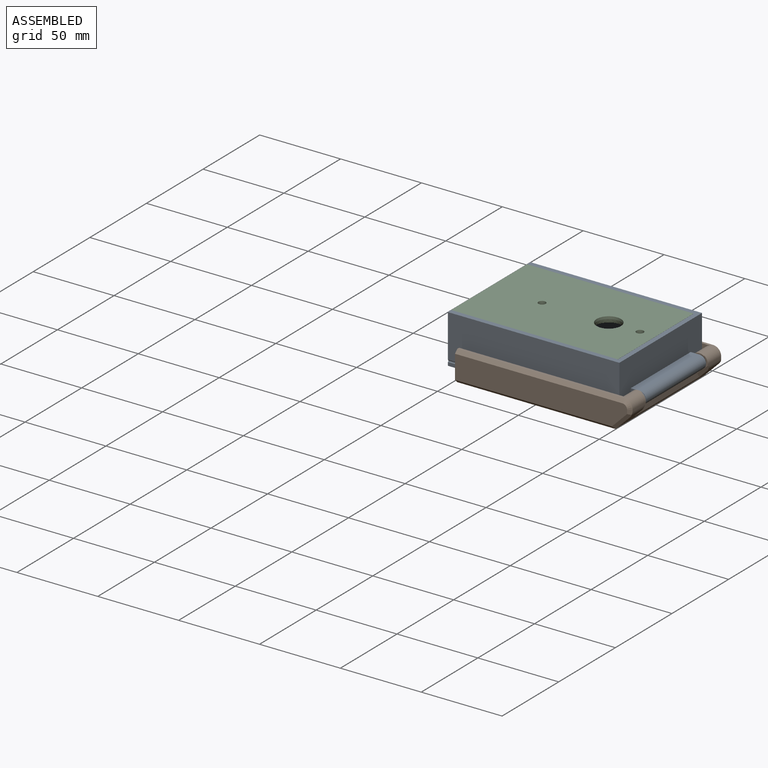
[diagram: assembled view]
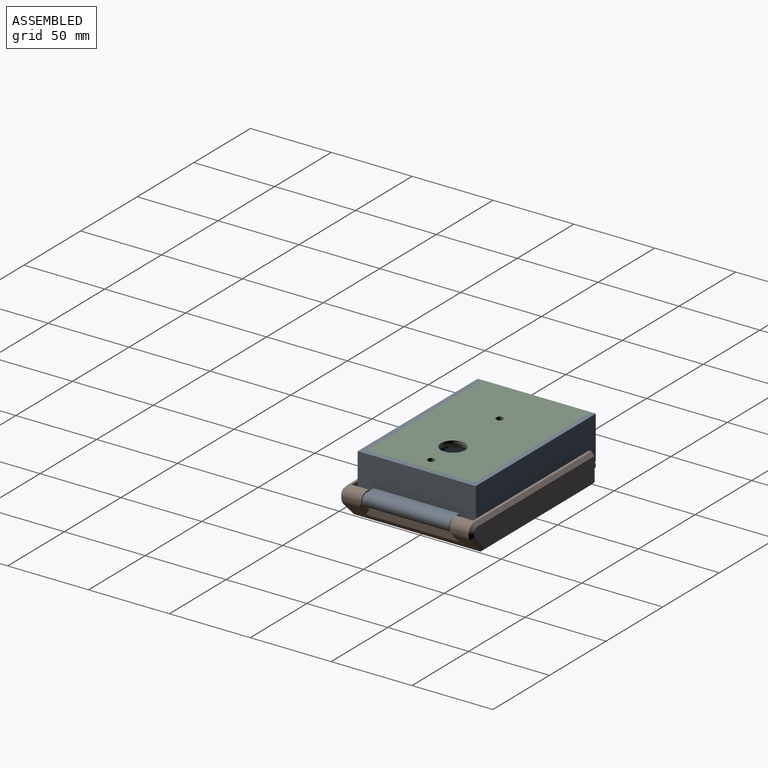
[diagram: assembled view, second angle]
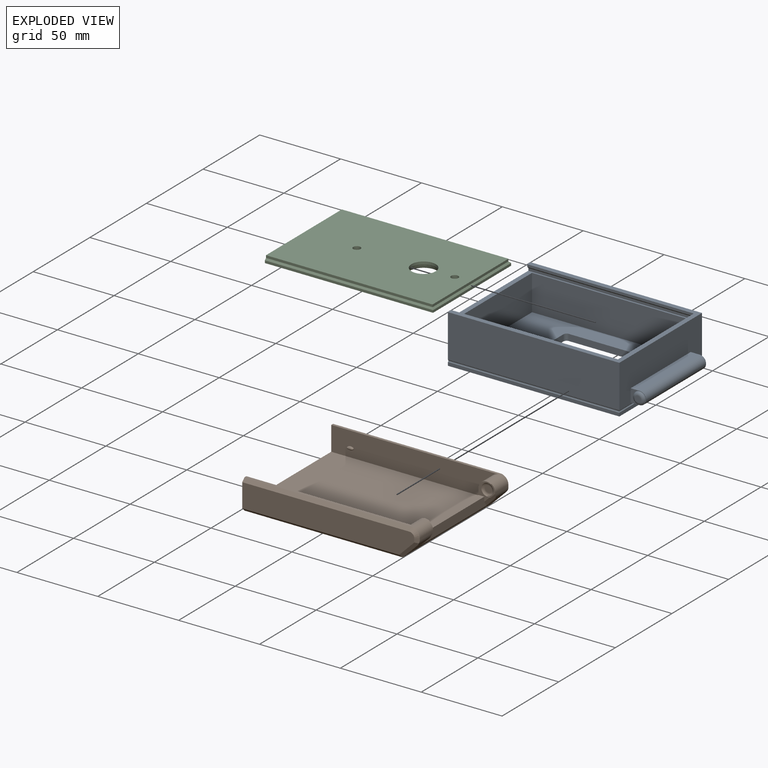
[diagram: exploded view]
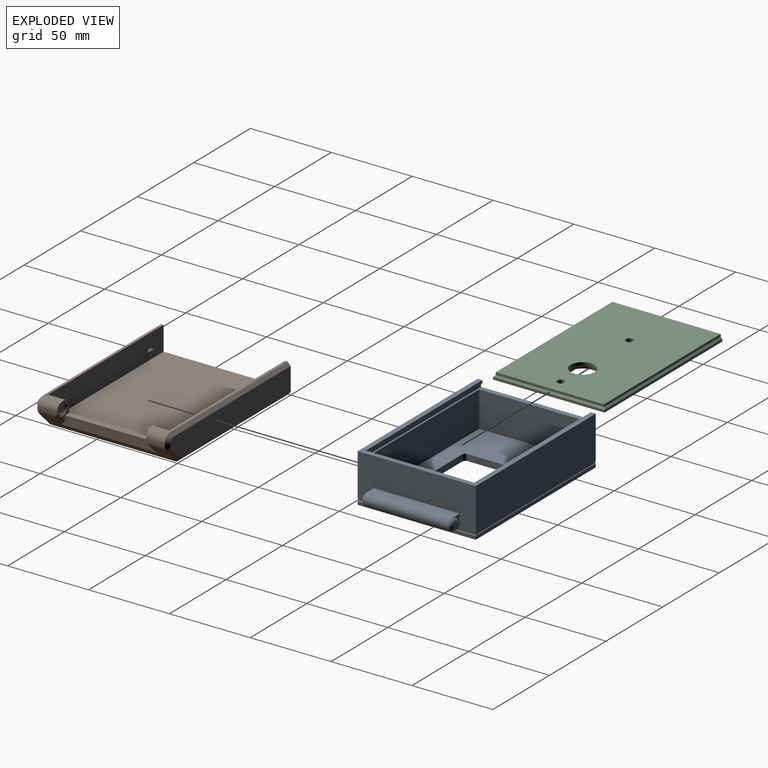
[diagram: exploded view, second angle]
ASSEMBLY  parts=3 mates=2
PART A: 50 faces, bbox 115.5x73x30 mm
  f0: plane 106x26.6mm, normal (0,1,0), area 2819.6mm2, adj f2,f8,f28,f46
  f1: plane 72.2x0.5mm, normal (1,0,0), area 36.1mm2, adj f4,f43,f45,f49
  f2: plane 73x26.6mm, normal (1,0,0), area 1517.8mm2, adj f0,f5,f7,f8,f9,f10,f38,f45
  f3: plane 106x2.1mm, normal (0,1,0), area 222.6mm2, adj f6,f11,f28,f47
  f4: plane 105.6x0.5mm, normal (0,-1,0), area 52.8mm2, adj f1,f28,f44,f48
  f5: plane 106x26.6mm, normal (0,-1,0), area 2819.6mm2, adj f2,f8,f28,f44
  f6: plane 73x2.1mm, normal (1,0,0), area 153.3mm2, adj f3,f11,f29,f49
  f7: plane 53x5.5mm, normal (0,0,1), area 291.5mm2, adj f2,f9,f10,f39
  f8: plane 106x73mm, normal (0,0,1), area 837mm2, adj f0,f2,f5,f25,f26,f27,f28
  f9: plane 9.5x8mm, normal (0,-1,0), area 25mm2, adj f2,f7,f35,f38,f39
  f10: plane 9.5x8mm, normal (0,1,0), area 25mm2, adj f2,f7,f37,f38,f39
  f11: plane 106x73mm, normal (0,0,-1), area 5140mm2, adj f3,f6,f16,f17,f18,f19,f20,f21
  f12: plane 100x22mm, normal (0,-1,0), area 2200mm2, adj f13,f15,f24,f30
  f13: plane 67x22mm, normal (1,0,0), area 1474mm2, adj f12,f14,f24,f30
  f14: plane 100x22mm, normal (0,1,0), area 2200mm2, adj f13,f15,f24,f30
  f15: plane 67x22mm, normal (-1,0,0), area 1474mm2, adj f12,f14,f24,f30
  f16: cylinder r=2mm len=4mm, axis (0,0,-1), area 12.6mm2, adj f11,f17,f23,f24
  f17: plane 52.8x4mm, normal (0,-1,0), area 211.2mm2, adj f11,f16,f18,f24
  f18: cylinder r=2mm len=4mm, axis (0,0,-1), area 12.6mm2, adj f11,f17,f19,f24
  f19: plane 41.8x4mm, normal (-1,0,0), area 167.2mm2, adj f11,f18,f20,f24
  f20: cylinder r=2mm len=4mm, axis (0,0,-1), area 12.6mm2, adj f11,f19,f21,f24
  f21: plane 52.8x4mm, normal (0,1,0), area 211.2mm2, adj f11,f20,f22,f24
  f22: cylinder r=2mm len=4mm, axis (0,0,-1), area 12.6mm2, adj f11,f21,f23,f24
  f23: plane 41.8x4mm, normal (1,0,0), area 167.2mm2, adj f11,f16,f22,f24
  f24: plane 100x67mm, normal (0,0,1), area 4102mm2, adj f12,f13,f14,f15,f16,f17,f18,f19
  f25: plane 103x1.5mm, normal (0,-1,0), area 154.5mm2, adj f8,f27,f28,f40
  f26: plane 103x1.5mm, normal (0,1,0), area 154.5mm2, adj f8,f27,f28,f41
  f27: plane 67x1.5mm, normal (-1,0,0), area 100.5mm2, adj f8,f25,f26,f42
  f28: plane 73x30mm, normal (-1,0,0), area 1917.3mm2, adj f0,f3,f4,f5,f8,f11,f25,f26
  f29: plane 106x2.1mm, normal (0,-1,0), area 222.6mm2, adj f6,f11,f28,f48
  f30: plane 104x69mm, normal (0,0,1), area 476mm2, adj f12,f13,f14,f15,f28,f31,f32,f33
  f31: plane 104x1.5mm, normal (0,-1,0), area 156mm2, adj f28,f30,f33,f40
  f32: plane 104x1.5mm, normal (0,1,0), area 156mm2, adj f28,f30,f33,f41
  f33: plane 69x1.5mm, normal (-1,0,0), area 103.5mm2, adj f30,f31,f32,f42
  f34: plane 3.63x3.63mm, normal (0,-1,0), area 10.3mm2, adj f35
  f35: torus R=1.81mm, axis (0,1,0), area 48.9mm2, adj f9,f34
  f36: plane 3.63x3.63mm, normal (0,1,0), area 10.3mm2, adj f37
  f37: torus R=1.81mm, axis (0,-1,0), area 48.9mm2, adj f10,f36
  f38: plane 53x5.5mm, normal (0,0,-1), area 291.5mm2, adj f2,f9,f10,f39
  f39: cylinder r=4mm len=53mm, axis (0,-1,0), area 666mm2, adj f7,f9,f10,f38
  f40: plane 104x1mm, normal (0,-0.71,-0.71), area 146.4mm2, adj f25,f28,f31,f42
  f41: plane 104x1mm, normal (0,0.71,-0.71), area 146.4mm2, adj f26,f28,f32,f42
  f42: plane 69x1mm, normal (-0.71,0,-0.71), area 96.2mm2, adj f27,f33,f40,f41
  f43: plane 105.6x0.5mm, normal (0,1,0), area 52.8mm2, adj f1,f28,f46,f47
  f44: plane 106x0.4mm, normal (0,-0.71,-0.71), area 59.8mm2, adj f4,f5,f28,f45
  f45: plane 73x0.4mm, normal (0.71,0,-0.71), area 41.1mm2, adj f1,f2,f44,f46
  f46: plane 106x0.4mm, normal (0,0.71,-0.71), area 59.8mm2, adj f0,f28,f43,f45
  f47: plane 106x0.4mm, normal (0,0.71,0.71), area 59.8mm2, adj f3,f28,f43,f49
  f48: plane 106x0.4mm, normal (0,-0.71,0.71), area 59.8mm2, adj f4,f28,f29,f49
  f49: plane 73x0.4mm, normal (0.71,0,0.71), area 41.1mm2, adj f1,f6,f47,f48
PART B: 57 faces, bbox 109.1x82.9x19.3 mm
  f0: plane 11.67x7.63mm, normal (0,-1,0), area 26.7mm2, adj f2,f8,f16,f17,f25,f27,f49,f51
  f1: plane 103.4x1.6mm, normal (0,0,1), area 165.4mm2, adj f6,f9,f26,f45
  f2: torus R=2.02mm, axis (0,1,0), area 33.4mm2, adj f0,f12,f13,f14,f15
  f3: plane 11.7x1.03mm, normal (1,0,0), area 12mm2, adj f20,f26,f48,f52,f56
  f4: plane 11.67x7.63mm, normal (0,1,0), area 26.7mm2, adj f8,f18,f23,f24,f25,f26,f49,f52
  f5: plane 11.7x1.03mm, normal (1,0,0), area 12mm2, adj f13,f27,f44,f51,f55
  f6: plane 82.2x18.6mm, normal (-1,0,0), area 395.9mm2, adj f1,f7,f9,f10,f11,f38,f39,f40
  f7: plane 103.4x15mm, normal (0,-1,0), area 1475.1mm2, adj f6,f8,f10,f11,f27,f28
  f8: plane 75x10mm, normal (-1,0,0), area 544.8mm2, adj f0,f4,f7,f9,f11,f25,f26,f27
  f9: plane 103.4x15mm, normal (0,1,0), area 1475.1mm2, adj f1,f6,f8,f11,f26,f33
  f10: plane 103.4x1.6mm, normal (0,0,1), area 165.4mm2, adj f6,f7,f27,f41
  f11: plane 98.4x75mm, normal (0,0,1), area 7380mm2, adj f6,f7,f8,f9
  f12: plane 4.04x4.04mm, normal (0,-1,0), area 12.8mm2, adj f2
  f13: plane 7.5x4.5mm, normal (0,-1,0), area 9.2mm2, adj f2,f5,f14,f15,f16,f17,f27,f51
  f14: plane 0.4x0.3mm, normal (1,0,0), area 0.1mm2, adj f2,f13,f16
  f15: plane 0.4x0.3mm, normal (1,0,0), area 0.1mm2, adj f2,f13,f17
  f16: plane 2.09x0.4mm, normal (0,0,1), area 0.7mm2, adj f0,f13,f14,f51
  f17: plane 2.13x0.4mm, normal (0,0,-1), area 0.9mm2, adj f0,f13,f15,f27
  f18: torus R=2.02mm, axis (0,-1,0), area 33.4mm2, adj f4,f19,f20,f21,f22
  f19: plane 4.04x4.04mm, normal (0,1,0), area 12.8mm2, adj f18
  f20: plane 7.5x4.5mm, normal (0,1,0), area 9.2mm2, adj f3,f18,f21,f22,f23,f24,f26,f52
  f21: plane 0.4x0.3mm, normal (1,0,0), area 0.1mm2, adj f18,f20,f23
  f22: plane 0.4x0.3mm, normal (1,0,0), area 0.1mm2, adj f18,f20,f24
  f23: plane 2.09x0.4mm, normal (0,0,1), area 0.7mm2, adj f4,f20,f21,f52
  f24: plane 2.13x0.4mm, normal (0,0,-1), area 0.9mm2, adj f4,f20,f22,f26
  f25: plane 54x3.6mm, normal (0,0,1), area 194.4mm2, adj f0,f4,f8,f49
  f26: cylinder r=5mm len=12.1mm, axis (0,-1,0), area 175.5mm2, adj f1,f3,f4,f8,f9,f20,f24,f46
  f27: cylinder r=5mm len=12.1mm, axis (0,-1,0), area 175.5mm2, adj f0,f5,f7,f8,f10,f13,f17,f42
  f28: extruded ~4x2mm, area 2.4mm2, adj f7,f29,f30,f31,f32
  f29: bspline ~2x1.44mm, area 1.8mm2, adj f28,f30,f31
  f30: bspline ~3.07x1.23mm, area 2mm2, adj f28,f29,f32
  f31: bspline ~3.1x1.26mm, area 2mm2, adj f28,f29,f32
  f32: bspline ~2x1.45mm, area 1.8mm2, adj f28,f30,f31
  f33: extruded ~4x2mm, area 2.4mm2, adj f9,f34,f35,f36,f37
  f34: bspline ~2x1.44mm, area 1.8mm2, adj f33,f35,f36
  f35: bspline ~3.07x1.23mm, area 2mm2, adj f33,f34,f37
  f36: bspline ~3.1x1.26mm, area 2mm2, adj f33,f34,f37
  f37: bspline ~2x1.45mm, area 1.8mm2, adj f33,f35,f36
  f38: plane 97.9x78.2mm, normal (0,0,-1), area 7655.8mm2, adj f6,f43,f47,f50
  f39: plane 106.4x14.6mm, normal (0,-1,0), area 1508mm2, adj f6,f45,f46,f47,f48,f54
  f40: plane 106.4x14.6mm, normal (0,1,0), area 1508mm2, adj f6,f41,f42,f43,f44,f53
  f41: plane 103.4x2mm, normal (0,0.71,0.71), area 292.5mm2, adj f6,f10,f40,f42
  f42: cone r=3mm half-angle=45deg, axis (0,-1,0), area 17.8mm2, adj f27,f40,f41,f44
  f43: plane 97.9x2mm, normal (0,0.71,-0.71), area 275.7mm2, adj f6,f38,f40,f53
  f44: plane 3.13x2.19mm, normal (0.71,0.71,0), area 7.2mm2, adj f5,f40,f42,f53,f55
  f45: plane 103.4x2mm, normal (0,-0.71,0.71), area 292.5mm2, adj f1,f6,f39,f46
  f46: cone r=3mm half-angle=45deg, axis (0,1,0), area 17.8mm2, adj f26,f39,f45,f48
  f47: plane 97.9x2mm, normal (0,-0.71,-0.71), area 275.7mm2, adj f6,f38,f39,f54
  f48: plane 3.13x2.19mm, normal (0.71,-0.71,0), area 7.2mm2, adj f3,f39,f46,f54,f56
  f49: plane 58x5.7mm, normal (1,0,0), area 313.5mm2, adj f0,f4,f25,f50,f51,f52
  f50: plane 78.2x9.04mm, normal (0.71,0,-0.71), area 594.4mm2, adj f38,f49,f51,f52,f53,f54,f55,f56
  f51: plane 9.37x7.1mm, normal (0.5,-0.71,-0.5), area 22.7mm2, adj f0,f5,f13,f16,f49,f50,f55
  f52: plane 9.37x7.1mm, normal (0.5,0.71,-0.5), area 22.7mm2, adj f3,f4,f20,f23,f49,f50,f56
  f53: plane 11.52x11.14mm, normal (0.5,0.71,-0.5), area 39.3mm2, adj f40,f43,f44,f50,f55
  f54: plane 11.52x11.14mm, normal (0.5,-0.71,-0.5), area 39.3mm2, adj f39,f47,f48,f50,f56
  f55: cylinder r=5mm len=11.95mm, axis (0,-1,0), area 43.3mm2, adj f5,f44,f50,f51,f53
  f56: cylinder r=5mm len=11.95mm, axis (0,1,0), area 43.3mm2, adj f3,f48,f50,f52,f54
PART C: 18 faces, bbox 104x69x4 mm
  f0: plane 103x1.5mm, normal (0,1,0), area 154.5mm2, adj f1,f3,f4,f9
  f1: plane 69x4mm, normal (-1,0,0), area 272mm2, adj f0,f2,f4,f5,f6,f8,f9,f10
  f2: plane 103x1.5mm, normal (0,-1,0), area 154.5mm2, adj f1,f3,f4,f10
  f3: plane 67x1.5mm, normal (1,0,0), area 100.5mm2, adj f0,f2,f4,f11
  f4: plane 103x67mm, normal (0,0,1), area 6692.5mm2, adj f0,f1,f2,f3,f12,f14,f16
  f5: plane 104x69mm, normal (0,0,-1), area 6843.4mm2, adj f1,f6,f7,f8,f13,f15,f17
  f6: plane 104x1.5mm, normal (0,-1,0), area 156mm2, adj f1,f5,f7,f10
  f7: plane 69x1.5mm, normal (1,0,0), area 103.5mm2, adj f5,f6,f8,f11
  f8: plane 104x1.5mm, normal (0,1,0), area 156mm2, adj f1,f5,f7,f9
  f9: plane 104x1mm, normal (0,0.71,0.71), area 146.4mm2, adj f0,f1,f8,f11
  f10: plane 104x1mm, normal (0,-0.71,0.71), area 146.4mm2, adj f1,f2,f6,f11
  f11: plane 69x1mm, normal (0.71,0,0.71), area 96.2mm2, adj f3,f7,f9,f10
  f12: cylinder r=7.5mm len=15mm, axis (0,0,-1), area 74.7mm2, adj f4,f13
  f13: cone r=7.5mm half-angle=22.5deg, axis (0,0,-1), area 131.4mm2, adj f5,f12
  f14: cylinder r=2.25mm len=4.5mm, axis (0,0,-1), area 30.4mm2, adj f4,f15
  f15: cone r=2.25mm half-angle=45deg, axis (0,0,-1), area 52.2mm2, adj f5,f14
  f16: cylinder r=2.25mm len=4.5mm, axis (0,0,-1), area 30.4mm2, adj f4,f17
  f17: cone r=2.25mm half-angle=45deg, axis (0,0,-1), area 52.2mm2, adj f5,f16
PLACE A at identity fixed
PLACE B rot(axis=(-0.51,-0.21,0.83),0deg) t=(4.6,0,-4.1)mm
PLACE C t=(115.9,0,26)mm
MATE revolute B.f2 <-> A.f39  axis (0,-1,0) through (58.5,28,8)mm
MATE slider C.f1 <-> A.f28  axis (-1,0,0) through (-53.1,34.5,26)mm
